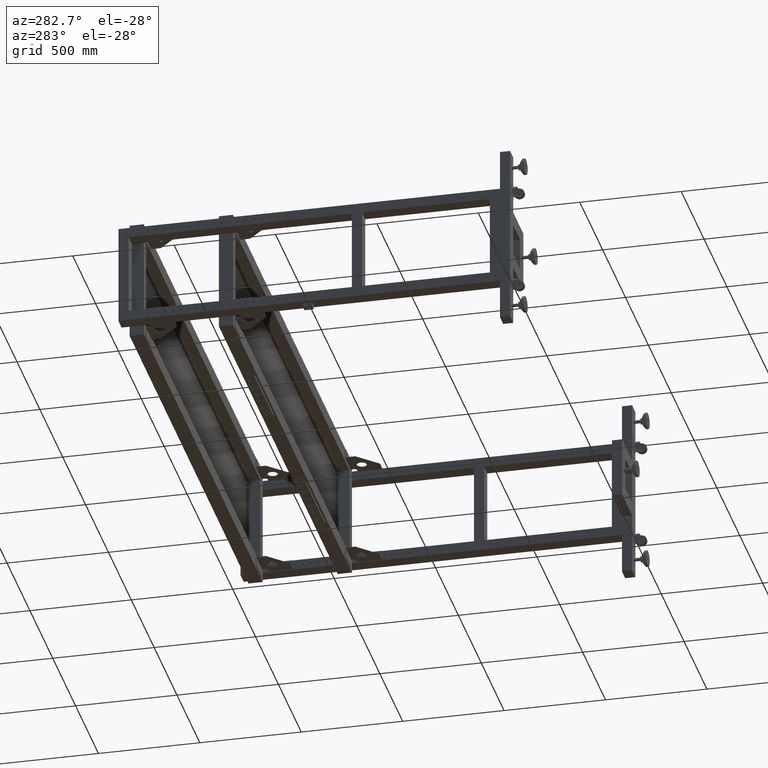
[diagram: clean part render]
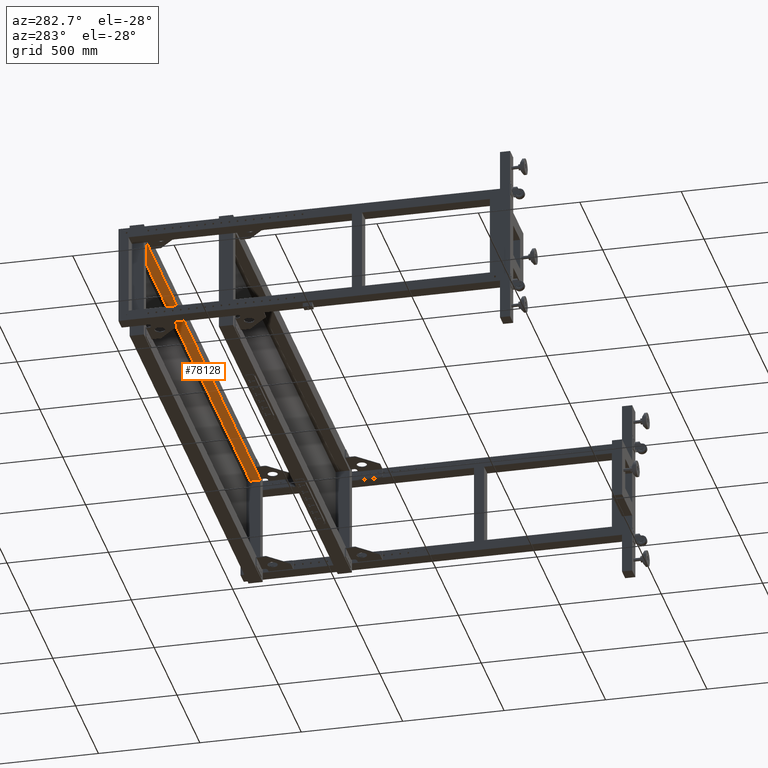
[diagram: same view with one face highlighted and labeled with its STEP entity id]
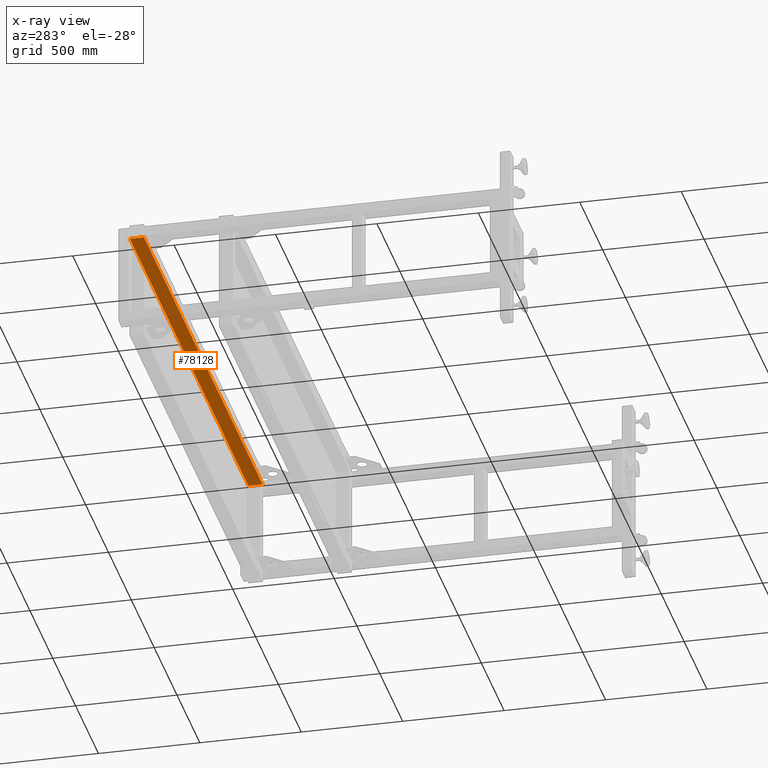
[diagram: x-ray of the same camera — body ghosted, the highlighted face saturated]
A machine part, auxiliary view. The second image highlights one B-rep face of the part: STEP entity #78128.
The next image is the same camera in x-ray: the body ghosted, the highlighted face saturated — about 7% of this face is hidden behind the body in this view.
In plain terms, the highlighted planar face has unit normal (0, -0, 1).
Its self-contained STEP definition (entity closure, byte-faithful):
#498 = EDGE_LOOP ( 'NONE', ( #31736, #28872, #62525, #38046 ) ) ;
#2701 = VECTOR ( 'NONE', #69464, 1000.000000000000000 ) ;
#2903 = EDGE_CURVE ( 'NONE', #42300, #24220, #9253, .T. ) ;
#3485 = LINE ( 'NONE', #21970, #29327 ) ;
#8394 = VECTOR ( 'NONE', #78293, 1000.000000000000000 ) ;
#9253 = LINE ( 'NONE', #34962, #32145 ) ;
#11496 = LINE ( 'NONE', #17140, #8394 ) ;
#17140 = CARTESIAN_POINT ( 'NONE',  ( 1329.827512562815855, 926.9410804020122896, 230.0000000000009379 ) ) ;
#17223 = DIRECTION ( 'NONE',  ( 8.648342692346816226E-31, -3.603491776919587486E-15, 1.000000000000000000 ) ) ;
#21970 = CARTESIAN_POINT ( 'NONE',  ( 1329.827512562815855, 996.9410804020124033, 230.0000000000011653 ) ) ;
#22851 = CARTESIAN_POINT ( 'NONE',  ( 1329.827512562815855, 926.9410804020122896, 230.0000000000009379 ) ) ;
#23159 = AXIS2_PLACEMENT_3D ( 'NONE', #22851, #17223, #71161 ) ;
#24220 = VERTEX_POINT ( 'NONE', #66085 ) ;
#28390 = LINE ( 'NONE', #77481, #2701 ) ;
#28872 = ORIENTED_EDGE ( 'NONE', *, *, #35255, .T. ) ;
#29327 = VECTOR ( 'NONE', #65016, 1000.000000000000000 ) ;
#31736 = ORIENTED_EDGE ( 'NONE', *, *, #33176, .F. ) ;
#32145 = VECTOR ( 'NONE', #39798, 1000.000000000000000 ) ;
#33176 = EDGE_CURVE ( 'NONE', #43466, #43579, #3485, .T. ) ;
#34602 = CARTESIAN_POINT ( 'NONE',  ( 1329.827512562815855, 996.9410804020124033, 230.0000000000011653 ) ) ;
#34962 = CARTESIAN_POINT ( 'NONE',  ( 1329.827512562815855, 926.9410804020122896, 230.0000000000009379 ) ) ;
#35255 = EDGE_CURVE ( 'NONE', #43466, #42300, #11496, .T. ) ;
#38046 = ORIENTED_EDGE ( 'NONE', *, *, #71636, .F. ) ;
#39798 = DIRECTION ( 'NONE',  ( -1.000000000000000000, -2.399989573374237993E-16, 0.000000000000000000 ) ) ;
#42300 = VERTEX_POINT ( 'NONE', #72465 ) ;
#43466 = VERTEX_POINT ( 'NONE', #34602 ) ;
#43579 = VERTEX_POINT ( 'NONE', #66774 ) ;
#46216 = PLANE ( 'NONE',  #23159 ) ;
#62525 = ORIENTED_EDGE ( 'NONE', *, *, #2903, .T. ) ;
#65016 = DIRECTION ( 'NONE',  ( -1.000000000000000000, -2.399989573374237993E-16, 0.000000000000000000 ) ) ;
#66085 = CARTESIAN_POINT ( 'NONE',  ( -1266.172487437185964, 926.9410804020119485, 230.0000000000009379 ) ) ;
#66774 = CARTESIAN_POINT ( 'NONE',  ( -1266.172487437185964, 996.9410804020120622, 230.0000000000011653 ) ) ;
#69464 = DIRECTION ( 'NONE',  ( 0.000000000000000000, -1.000000000000000000, -3.603491776919587486E-15 ) ) ;
#71161 = DIRECTION ( 'NONE',  ( -2.399989573374237993E-16, 1.000000000000000000, 3.603491776919587486E-15 ) ) ;
#71636 = EDGE_CURVE ( 'NONE', #43579, #24220, #28390, .T. ) ;
#72465 = CARTESIAN_POINT ( 'NONE',  ( 1329.827512562815855, 926.9410804020122896, 230.0000000000009379 ) ) ;
#77207 = FACE_OUTER_BOUND ( 'NONE', #498, .T. ) ;
#77481 = CARTESIAN_POINT ( 'NONE',  ( -1266.172487437185964, 926.9410804020119485, 230.0000000000009379 ) ) ;
#78128 = ADVANCED_FACE ( 'NONE', ( #77207 ), #46216, .F. ) ;
#78293 = DIRECTION ( 'NONE',  ( 2.399989573374237993E-16, -1.000000000000000000, -3.603491776919587486E-15 ) ) ;